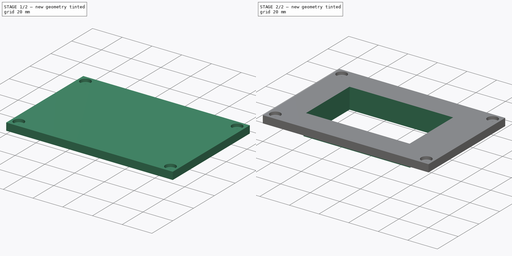
[diagram: build sequence overview — one tinted view per stage of 2, left to right]
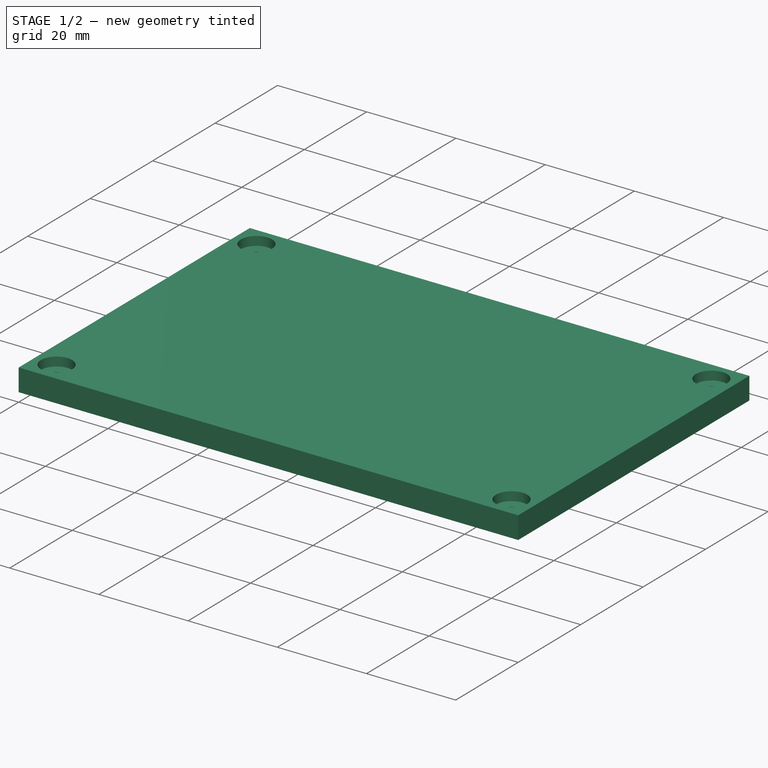
[diagram: stage 1 of 2 — iso view after this stage's code; geometry added in this stage tinted green]
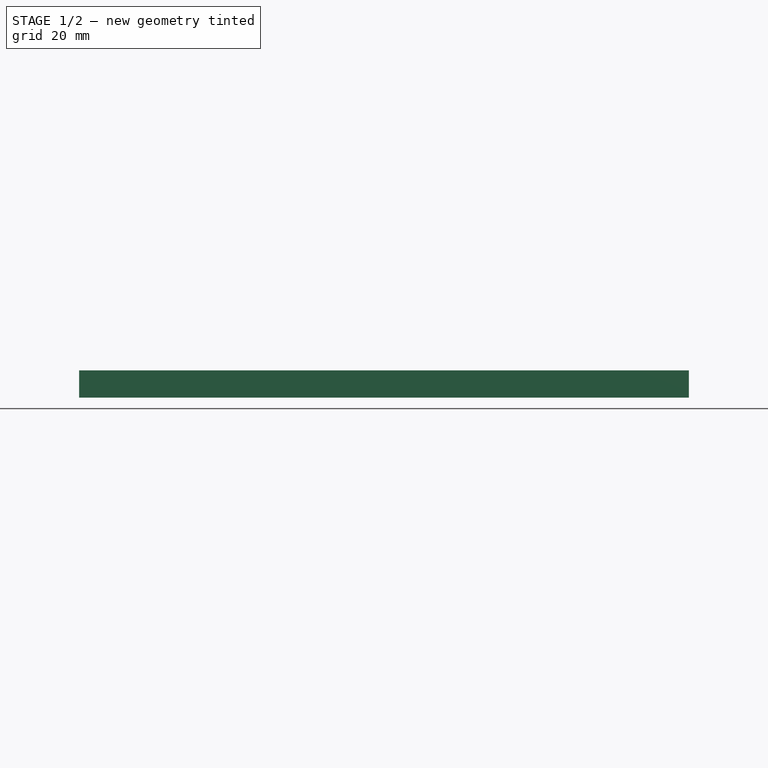
[diagram: stage 1 of 2 — front view after this stage's code; geometry added in this stage tinted green]
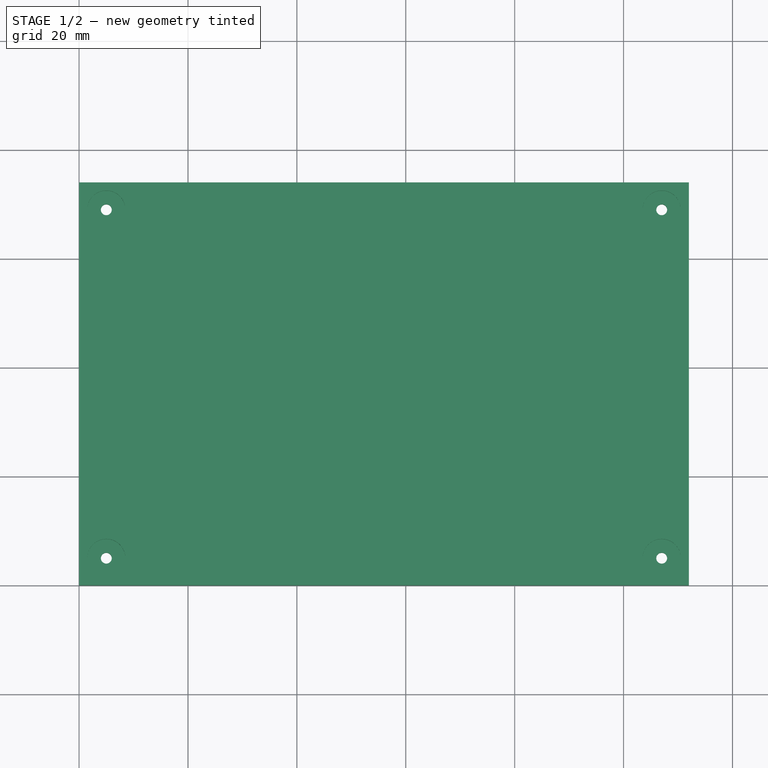
[diagram: stage 1 of 2 — top view after this stage's code; geometry added in this stage tinted green]
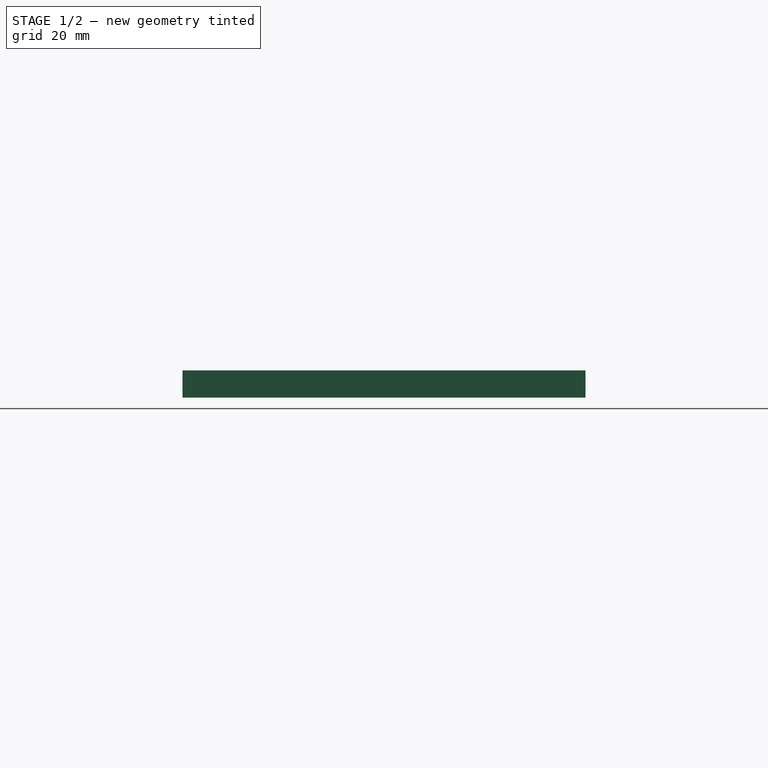
[diagram: stage 1 of 2 — right view after this stage's code; geometry added in this stage tinted green]
FCSTD DOCUMENT  (FreeCAD 0.16R6706 (Git))
Label: Theremin_Tapa_V1
License: All rights reserved
LicenseURL: http://en.wikipedia.org/wiki/All_rights_reserved
objects: Sketcher::SketchObject×4, PartDesign::Pad×2, PartDesign::Pocket×2
note: 12 computed .brp shape members not serialized (recipe doc carries the construction recipe); baked Part::Feature solids carry a one-line shape summary decoded from their .brp

FEATURE [Sketcher::SketchObject] Sketch  label="Tapa"
  sketch-geometry (8):
    g0: LineSegment StartX=0 StartY=74 StartZ=0 EndX=112 EndY=74 EndZ=0
    g1: LineSegment StartX=112 StartY=74 StartZ=0 EndX=112 EndY=0 EndZ=0
    g2: LineSegment StartX=112 StartY=0 StartZ=0 EndX=0 EndY=0 EndZ=0
    g3: LineSegment StartX=0 StartY=0 StartZ=0 EndX=0 EndY=74 EndZ=0
    g4: Circle CenterX=5 CenterY=69 CenterZ=0 NormalX=0 NormalY=0 NormalZ=1 Radius=1
    g5: Circle CenterX=5 CenterY=5 CenterZ=0 NormalX=0 NormalY=0 NormalZ=1 Radius=1
    g6: Circle CenterX=107 CenterY=69 CenterZ=0 NormalX=0 NormalY=0 NormalZ=1 Radius=1
    g7: Circle CenterX=107 CenterY=5 CenterZ=0 NormalX=0 NormalY=0 NormalZ=1 Radius=1
  constraints (23):
    c: Coincident(g0,g1)
    c: Coincident(g1,g2)
    c: Coincident(g2,g3)
    c: Coincident(g3,g0)
    c: Horizontal(g0)
    c: Horizontal(g2)
    c: Vertical(g1)
    c: Vertical(g3)
    c: DistanceX(g2,g2) = 112
    c: DistanceY(g1,g1) = 74
    c: Coincident(g2,g-1)
    c: Radius(g4) = 1
    c: DistanceX(g-1,g4) = 5
    c: DistanceY(g4,g0) = 5
    c: Radius(g5) = 1
    c: DistanceY(g-1,g5) = 5
    c: DistanceX(g-1,g5) = 5
    c: Radius(g6) = 1
    c: DistanceY(g6,g4) = 0
    c: DistanceX(g-1,g6) = 107
    c: Radius(g7) = 1
    c: DistanceX(g7,g6) = 0
    c: DistanceY(g5,g7) = 0
FEATURE [PartDesign::Pad] Pad  label="Tapa_F"
  Length = 5
  Length2 = 100
  Sketch = -> Sketch
  Type = 0
FEATURE [Sketcher::SketchObject] Sketch001  label="Tornillos"
  Placement = pos=(0,0,5) rot=(0,0,1;0rad)
  Support = -> Pad [Face10]
  sketch-geometry (4):
    g0: Circle CenterX=5 CenterY=5 CenterZ=0 NormalX=0 NormalY=0 NormalZ=1 Radius=3.5
    g1: Circle CenterX=5 CenterY=69 CenterZ=0 NormalX=0 NormalY=0 NormalZ=1 Radius=3.5
    g2: Circle CenterX=107 CenterY=69 CenterZ=0 NormalX=0 NormalY=0 NormalZ=1 Radius=3.5
    g3: Circle CenterX=107 CenterY=5 CenterZ=0 NormalX=0 NormalY=0 NormalZ=1 Radius=3.5
  constraints (12):
    c: Radius(g0) = 3.5
    c: DistanceY(g-1,g0) = 5
    c: DistanceX(g-1,g0) = 5
    c: Radius(g1) = 3.5
    c: DistanceX(g0,g1) = 0
    c: DistanceY(g-1,g1) = 69
    c: Radius(g2) = 3.5
    c: DistanceY(g2,g1) = 0
    c: DistanceX(g-1,g2) = 107
    c: Radius(g3) = 3.5
    c: DistanceX(g3,g2) = 0
    c: DistanceY(g0,g3) = 0
FEATURE [PartDesign::Pocket] Pocket  label="Tornillos_F"
  Length = 2
  Sketch = -> Sketch001
  Type = 0
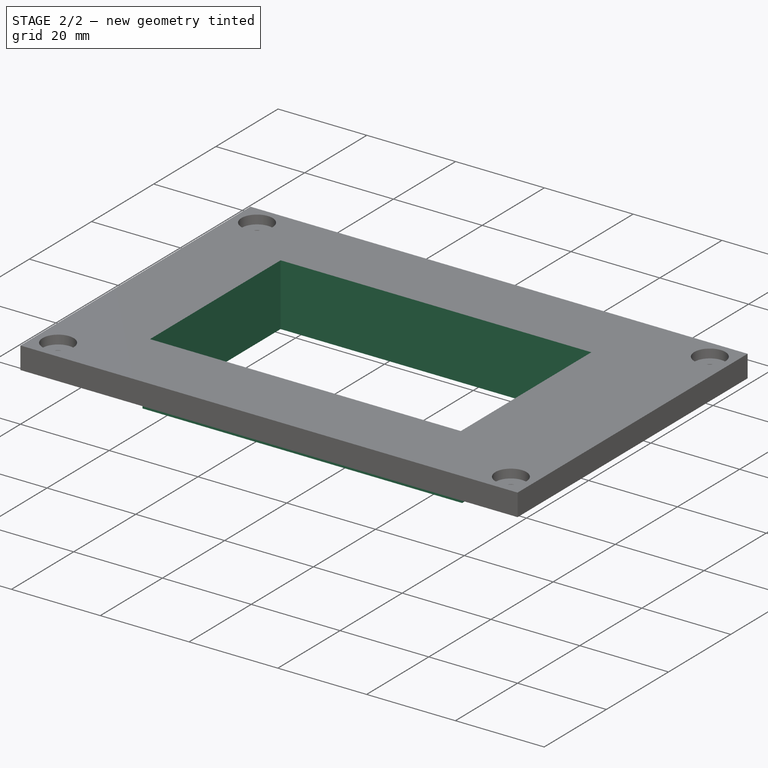
[diagram: stage 2 of 2 — iso view after this stage's code; geometry added in this stage tinted green]
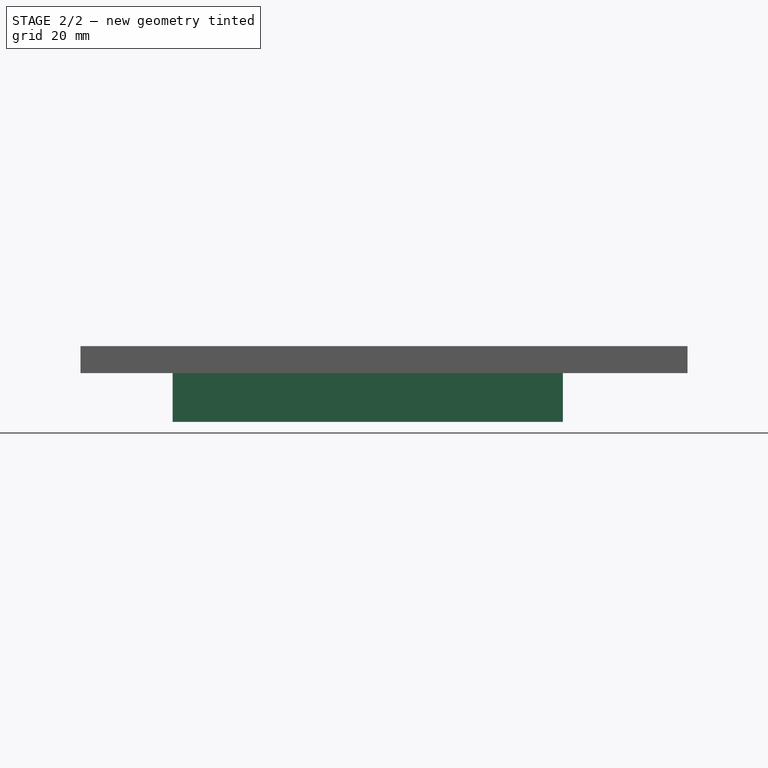
[diagram: stage 2 of 2 — front view after this stage's code; geometry added in this stage tinted green]
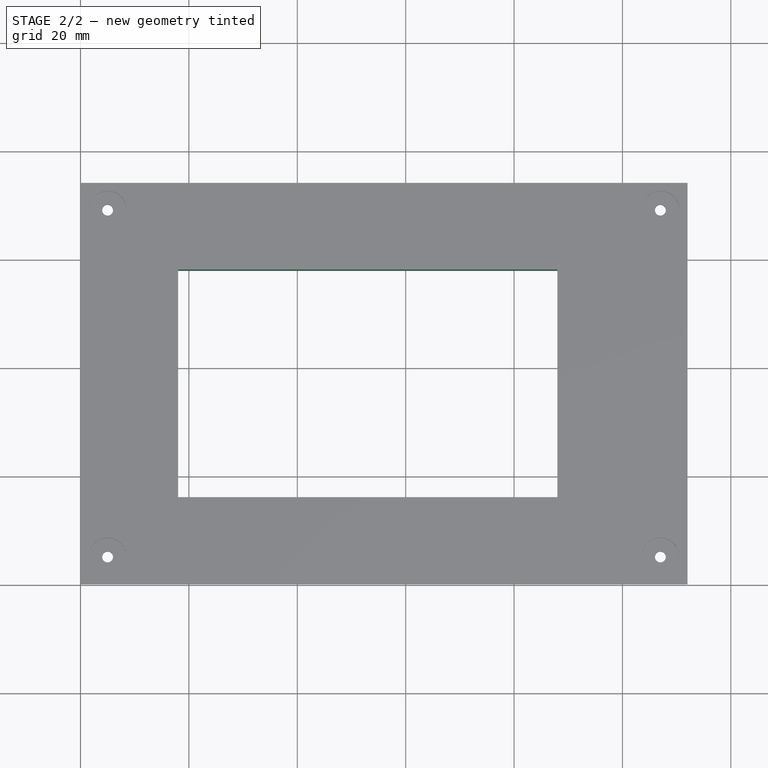
[diagram: stage 2 of 2 — top view after this stage's code; geometry added in this stage tinted green]
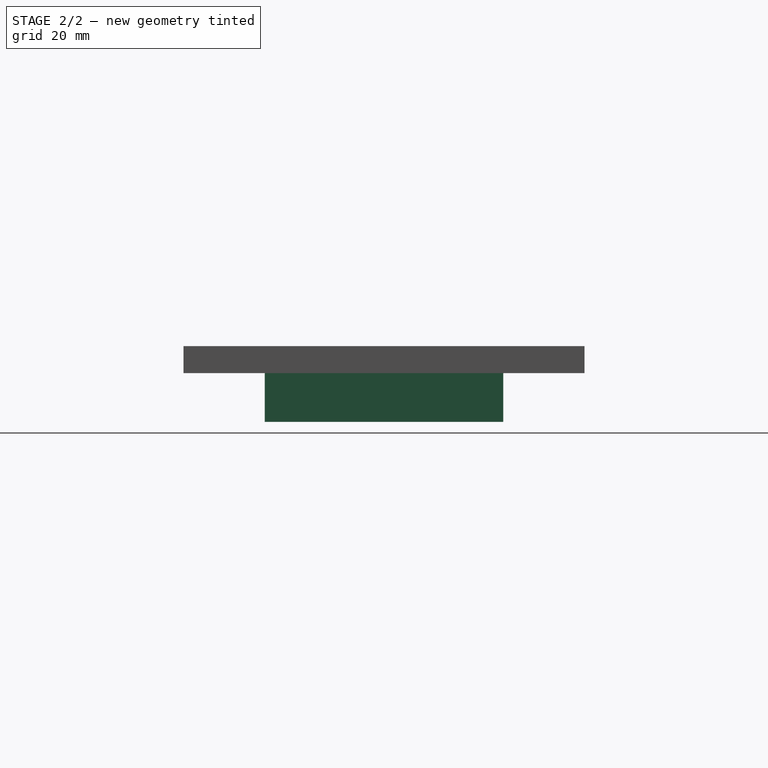
[diagram: stage 2 of 2 — right view after this stage's code; geometry added in this stage tinted green]
FEATURE [Sketcher::SketchObject] Sketch002  label="Potenciometros"
  Placement = pos=(0,0,5) rot=(0,0,1;0rad)
  Support = -> Pocket [Face5]
  sketch-geometry (4):
    g0: LineSegment StartX=18 StartY=58 StartZ=0 EndX=88 EndY=58 EndZ=0
    g1: LineSegment StartX=88 StartY=58 StartZ=0 EndX=88 EndY=16 EndZ=0
    g2: LineSegment StartX=88 StartY=16 StartZ=0 EndX=18 EndY=16 EndZ=0
    g3: LineSegment StartX=18 StartY=16 StartZ=0 EndX=18 EndY=58 EndZ=0
  constraints (12):
    c: Coincident(g0,g1)
    c: Coincident(g1,g2)
    c: Coincident(g2,g3)
    c: Coincident(g3,g0)
    c: Horizontal(g0)
    c: Horizontal(g2)
    c: Vertical(g1)
    c: Vertical(g3)
    c: DistanceX(g0,g0) = 70
    c: DistanceY(g1,g1) = 42
    c: DistanceX(g-1,g2) = 18
    c: DistanceY(g-1,g2) = 16
FEATURE [PartDesign::Pocket] Pocket001  label="Potenciometros_F"
  Length = 5
  Sketch = -> Sketch002
  Type = 0
FEATURE [Sketcher::SketchObject] Sketch003  label="Caja_Mandos"
  Placement = pos=(0,0,0) rot=(1,0,0;3.14159rad)
  Support = -> Pocket001 [Face4]
  sketch-geometry (8):
    g0: LineSegment StartX=18 StartY=-16 StartZ=0 EndX=88 EndY=-16 EndZ=0
    g1: LineSegment StartX=88 StartY=-16 StartZ=0 EndX=88 EndY=-58 EndZ=0
    g2: LineSegment StartX=88 StartY=-58 StartZ=0 EndX=18 EndY=-58 EndZ=0
    g3: LineSegment StartX=18 StartY=-58 StartZ=0 EndX=18 EndY=-16 EndZ=0
    g4: LineSegment StartX=17 StartY=-15 StartZ=0 EndX=89 EndY=-15 EndZ=0
    g5: LineSegment StartX=89 StartY=-15 StartZ=0 EndX=89 EndY=-59 EndZ=0
    g6: LineSegment StartX=89 StartY=-59 StartZ=0 EndX=17 EndY=-59 EndZ=0
    g7: LineSegment StartX=17 StartY=-59 StartZ=0 EndX=17 EndY=-15 EndZ=0
  constraints (24):
    c: Coincident(g0,g1)
    c: Coincident(g1,g2)
    c: Coincident(g2,g3)
    c: Coincident(g3,g0)
    c: Horizontal(g0)
    c: Horizontal(g2)
    c: Vertical(g1)
    c: Vertical(g3)
    c: DistanceX(g0,g0) = 70
    c: DistanceY(g1,g1) = 42
    c: DistanceY(g-1,g0) = -16
    c: DistanceX(g0,g-1) = -18
    c: Coincident(g4,g5)
    c: Coincident(g5,g6)
    c: Coincident(g6,g7)
    c: Coincident(g7,g4)
    c: Horizontal(g4)
    c: Horizontal(g6)
    c: Vertical(g5)
    c: Vertical(g7)
    c: DistanceX(g4,g4) = 72
    c: DistanceY(g5,g5) = 44
    c: DistanceY(g-1,g4) = -15
    c: DistanceX(g-1,g4) = 17
FEATURE [PartDesign::Pad] Pad001  label="Caja_Mandos_F"
  Length = 9
  Length2 = 100
  Sketch = -> Sketch003
  Type = 0
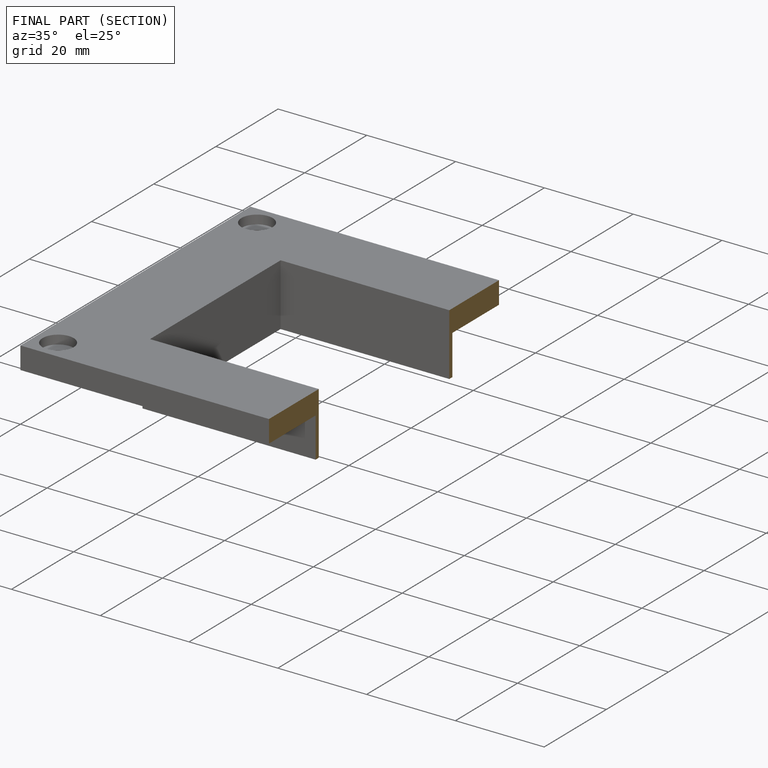
[diagram: finished part — half-section view (interior)]
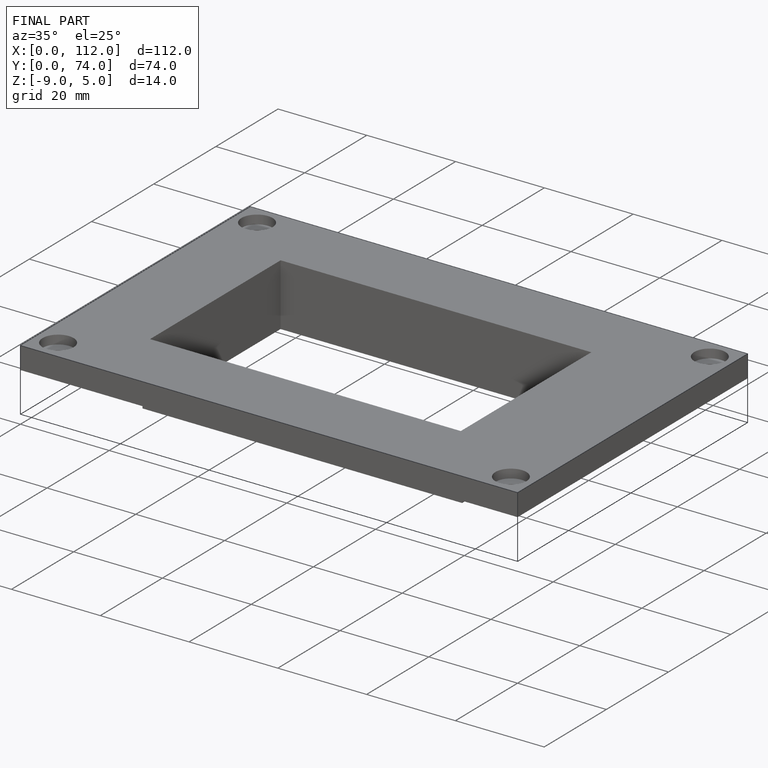
[diagram: finished part — iso view with bounding-box wireframe]
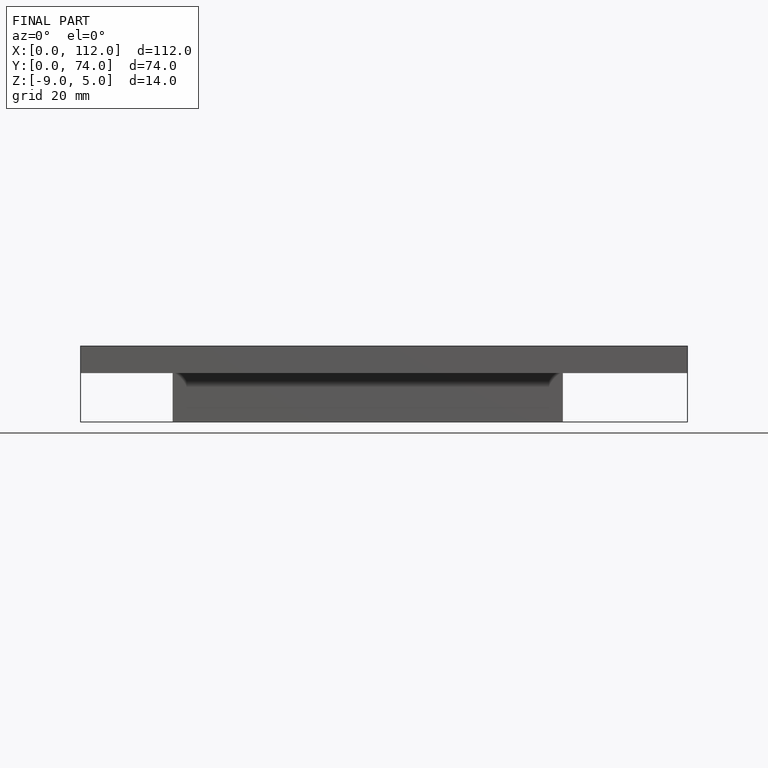
[diagram: finished part — front view with bounding-box wireframe]
